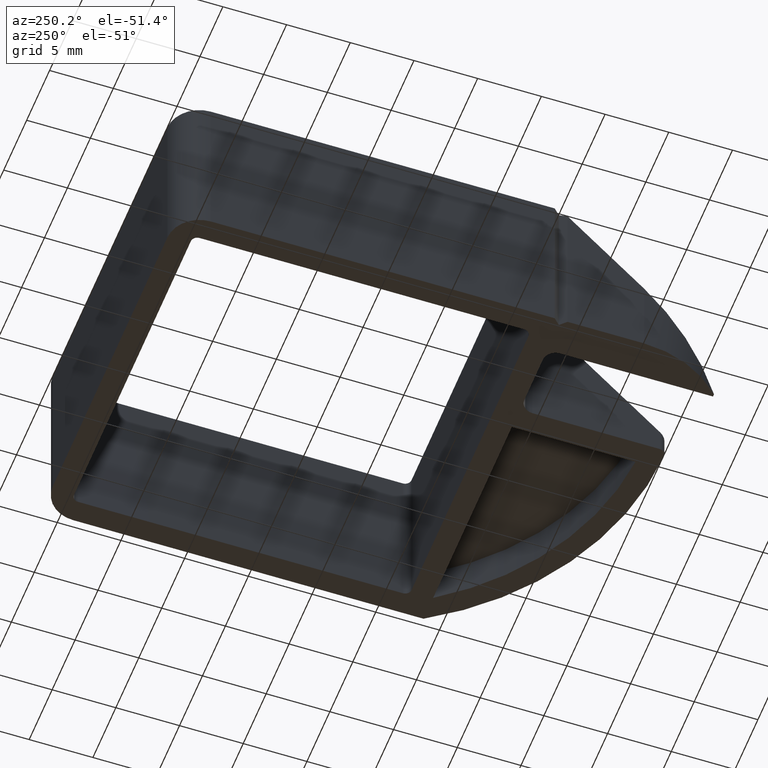
[diagram: clean part render]
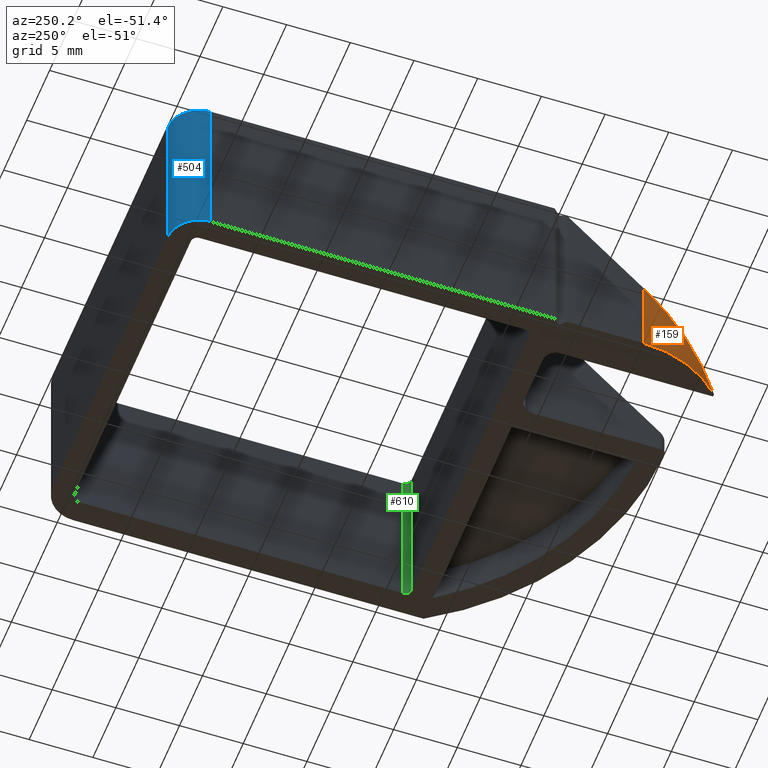
[diagram: same view with three faces highlighted in distinct colors, each labeled with its STEP entity id]
A machine part, auxiliary view with three faces highlighted in distinct colors.
Their STEP definitions:

[orange] entity #159 — the highlighted cylindrical surface (partial cylindrical patch) has radius 9 mm, axis along (0, -0, 1).
#109=CARTESIAN_POINT('',(-29.999999999999883,-20.250000000000000,-4.440892E-016));
#110=VERTEX_POINT('',#109);
#117=CARTESIAN_POINT('',(-29.999999999999883,-20.250000000000000,6.499999999999886));
#118=VERTEX_POINT('',#117);
#119=CARTESIAN_POINT('',(-29.999999999999883,-20.250000000000000,-4.440892E-016));
#120=DIRECTION('',(0.0,0.0,1.0));
#121=VECTOR('',#120,6.499999999999886);
#122=LINE('',#119,#121);
#123=EDGE_CURVE('',#110,#118,#122,.T.);
#135=CARTESIAN_POINT('',(-20.999999999999883,-20.250000000000000,-4.440892E-016));
#136=DIRECTION('',(1.499760E-032,-1.224647E-016,1.0));
#137=DIRECTION('',(-1.0,-1.224647E-016,0.0));
#138=AXIS2_PLACEMENT_3D('',#135,#136,#137);
#139=CYLINDRICAL_SURFACE('',#138,9.0);
#140=CARTESIAN_POINT('',(-27.224949798994313,-26.750000000000000,-8.881784E-016));
#141=VERTEX_POINT('',#140);
#142=CARTESIAN_POINT('',(-20.999999999999886,-20.250000000000000,6.499999999999887));
#143=DIRECTION('',(-8.659561E-017,0.707106781186541,-0.707106781186554));
#144=DIRECTION('',(-8.659561E-017,0.707106781186554,0.707106781186541));
#145=AXIS2_PLACEMENT_3D('',#142,#143,#144);
#146=ELLIPSE('',#145,12.727922061357745,9.0);
#147=EDGE_CURVE('',#141,#118,#146,.T.);
#148=ORIENTED_EDGE('',*,*,#147,.T.);
#149=ORIENTED_EDGE('',*,*,#123,.F.);
#150=CARTESIAN_POINT('',(-20.999999999999883,-20.250000000000000,-4.440892E-016));
#151=DIRECTION('',(1.499760E-032,-1.224647E-016,1.0));
#152=DIRECTION('',(-1.0,-1.224647E-016,0.0));
#153=AXIS2_PLACEMENT_3D('',#150,#151,#152);
#154=CIRCLE('',#153,9.0);
#155=EDGE_CURVE('',#110,#141,#154,.T.);
#156=ORIENTED_EDGE('',*,*,#155,.T.);
#157=EDGE_LOOP('',(#148,#149,#156));
#158=FACE_OUTER_BOUND('',#157,.T.);
#159=ADVANCED_FACE('',(#158),#139,.T.);

[blue] entity #504 — the highlighted cylindrical surface (edge-blend (fillet) strip) has radius 2.5 mm, axis along (0, -0, 1).
#7=CARTESIAN_POINT('',(-29.999999999999886,13.749999999999998,1.776357E-015));
#8=VERTEX_POINT('',#7);
#25=CARTESIAN_POINT('',(-29.999999999999886,13.749999999999998,12.999999999999774));
#26=VERTEX_POINT('',#25);
#33=CARTESIAN_POINT('',(-29.999999999999886,13.749999999999998,1.776357E-015));
#34=DIRECTION('',(0.0,0.0,1.0));
#35=VECTOR('',#34,12.999999999999773);
#36=LINE('',#33,#35);
#37=EDGE_CURVE('',#8,#26,#36,.T.);
#455=CARTESIAN_POINT('',(-27.500000000000000,16.250000000000000,1.776357E-015));
#456=VERTEX_POINT('',#455);
#463=CARTESIAN_POINT('',(-27.500000000000000,16.250000000000000,12.999999999999774));
#464=VERTEX_POINT('',#463);
#465=CARTESIAN_POINT('',(-27.500000000000000,16.250000000000000,1.776357E-015));
#466=DIRECTION('',(0.0,0.0,1.0));
#467=VECTOR('',#466,12.999999999999773);
#468=LINE('',#465,#467);
#469=EDGE_CURVE('',#456,#464,#468,.T.);
#481=CARTESIAN_POINT('',(-27.500000000000000,13.749999999999998,1.776357E-015));
#482=DIRECTION('',(1.499760E-032,-1.224647E-016,1.0));
#483=DIRECTION('',(-6.277862E-016,1.0,1.224647E-016));
#484=AXIS2_PLACEMENT_3D('',#481,#482,#483);
#485=CYLINDRICAL_SURFACE('',#484,2.500000000000000);
#486=CARTESIAN_POINT('',(-27.500000000000000,13.749999999999998,1.776357E-015));
#487=DIRECTION('',(1.499760E-032,-1.224647E-016,1.0));
#488=DIRECTION('',(-1.0,-1.224647E-016,0.0));
#489=AXIS2_PLACEMENT_3D('',#486,#487,#488);
#490=CIRCLE('',#489,2.500000000000000);
#491=EDGE_CURVE('',#456,#8,#490,.T.);
#492=ORIENTED_EDGE('',*,*,#491,.T.);
#493=ORIENTED_EDGE('',*,*,#37,.T.);
#494=CARTESIAN_POINT('',(-27.500000000000000,13.749999999999998,12.999999999999774));
#495=DIRECTION('',(1.499760E-032,-1.224647E-016,1.0));
#496=DIRECTION('',(-1.0,-1.224647E-016,0.0));
#497=AXIS2_PLACEMENT_3D('',#494,#495,#496);
#498=CIRCLE('',#497,2.500000000000000);
#499=EDGE_CURVE('',#464,#26,#498,.T.);
#500=ORIENTED_EDGE('',*,*,#499,.F.);
#501=ORIENTED_EDGE('',*,*,#469,.F.);
#502=EDGE_LOOP('',(#492,#493,#500,#501));
#503=FACE_OUTER_BOUND('',#502,.T.);
#504=ADVANCED_FACE('',(#503),#485,.T.);

[green] entity #610 — the highlighted cylindrical surface (edge-blend (fillet) strip) has radius 0.5 mm, axis along (-0, 0, -1).
#552=CARTESIAN_POINT('',(-1.749999999999886,-11.499999999999998,2.220446E-016));
#553=VERTEX_POINT('',#552);
#560=CARTESIAN_POINT('',(-1.749999999999886,-11.499999999999998,12.999999999999773));
#561=VERTEX_POINT('',#560);
#562=CARTESIAN_POINT('',(-1.749999999999886,-11.499999999999998,2.220446E-016));
#563=DIRECTION('',(0.0,0.0,1.0));
#564=VECTOR('',#563,12.999999999999773);
#565=LINE('',#562,#564);
#566=EDGE_CURVE('',#553,#561,#565,.T.);
#578=CARTESIAN_POINT('',(-2.249999999999886,-11.499999999999998,2.220446E-016));
#579=DIRECTION('',(-1.499760E-032,1.224647E-016,-1.0));
#580=DIRECTION('',(1.0,-8.881784E-016,-1.237681E-031));
#581=AXIS2_PLACEMENT_3D('',#578,#579,#580);
#582=CYLINDRICAL_SURFACE('',#581,0.500000000000000);
#583=CARTESIAN_POINT('',(-2.249999999999886,-12.000000000000112,0.0));
#584=VERTEX_POINT('',#583);
#585=CARTESIAN_POINT('',(-2.249999999999886,-11.499999999999998,2.220446E-016));
#586=DIRECTION('',(-1.499760E-032,1.224647E-016,-1.0));
#587=DIRECTION('',(-1.0,-1.224647E-016,0.0));
#588=AXIS2_PLACEMENT_3D('',#585,#586,#587);
#589=CIRCLE('',#588,0.500000000000000);
#590=EDGE_CURVE('',#553,#584,#589,.T.);
#591=ORIENTED_EDGE('',*,*,#590,.T.);
#592=CARTESIAN_POINT('',(-2.249999999999886,-12.000000000000112,12.999999999999773));
#593=VERTEX_POINT('',#592);
#594=CARTESIAN_POINT('',(-2.249999999999886,-12.000000000000112,0.0));
#595=DIRECTION('',(0.0,0.0,1.0));
#596=VECTOR('',#595,12.999999999999773);
#597=LINE('',#594,#596);
#598=EDGE_CURVE('',#584,#593,#597,.T.);
#599=ORIENTED_EDGE('',*,*,#598,.T.);
#600=CARTESIAN_POINT('',(-2.249999999999886,-11.499999999999998,12.999999999999773));
#601=DIRECTION('',(-1.499760E-032,1.224647E-016,-1.0));
#602=DIRECTION('',(-1.0,-1.224647E-016,0.0));
#603=AXIS2_PLACEMENT_3D('',#600,#601,#602);
#604=CIRCLE('',#603,0.500000000000000);
#605=EDGE_CURVE('',#561,#593,#604,.T.);
#606=ORIENTED_EDGE('',*,*,#605,.F.);
#607=ORIENTED_EDGE('',*,*,#566,.F.);
#608=EDGE_LOOP('',(#591,#599,#606,#607));
#609=FACE_OUTER_BOUND('',#608,.T.);
#610=ADVANCED_FACE('',(#609),#582,.F.);